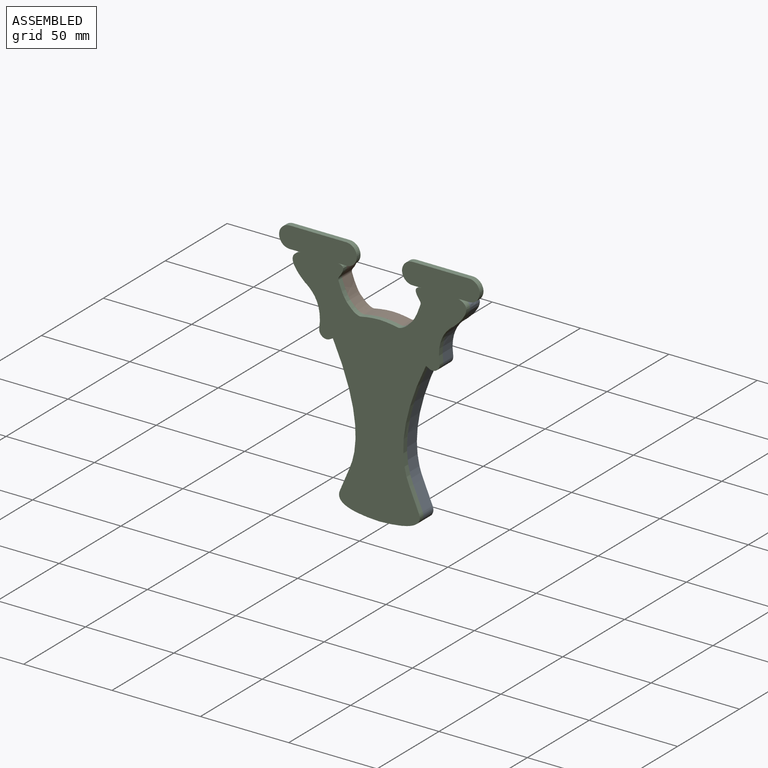
[diagram: assembled view]
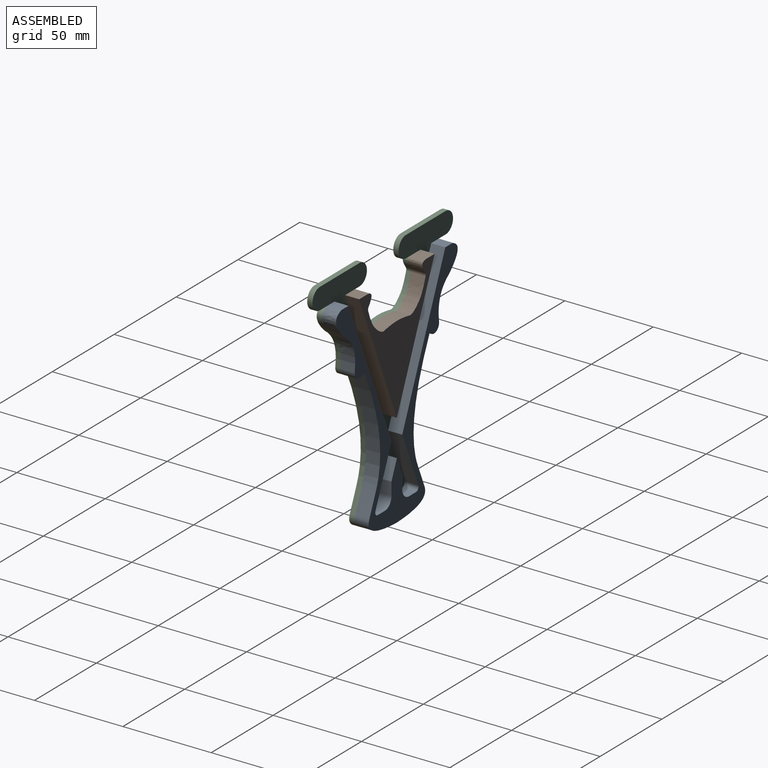
[diagram: assembled view, second angle]
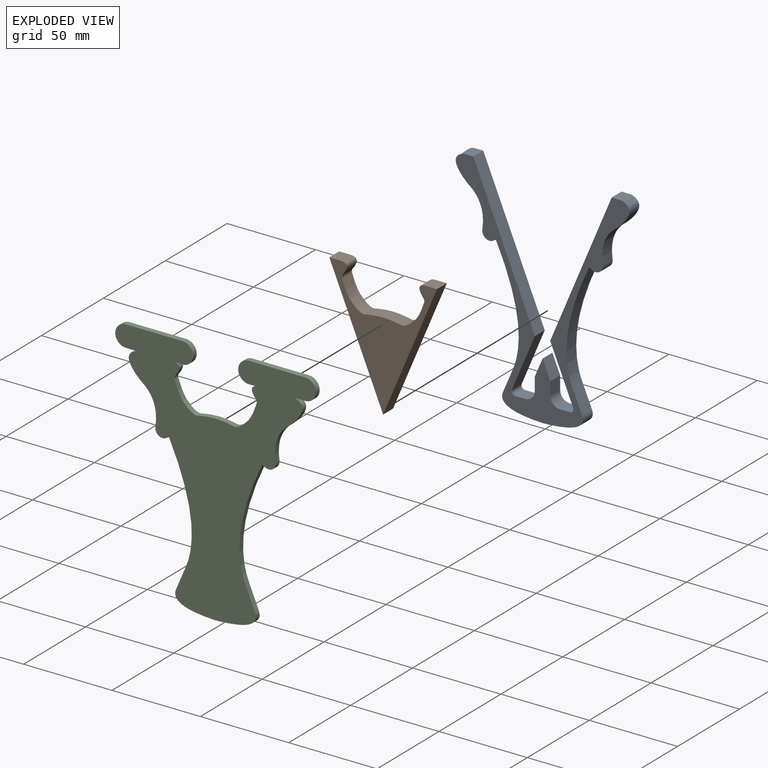
[diagram: exploded view]
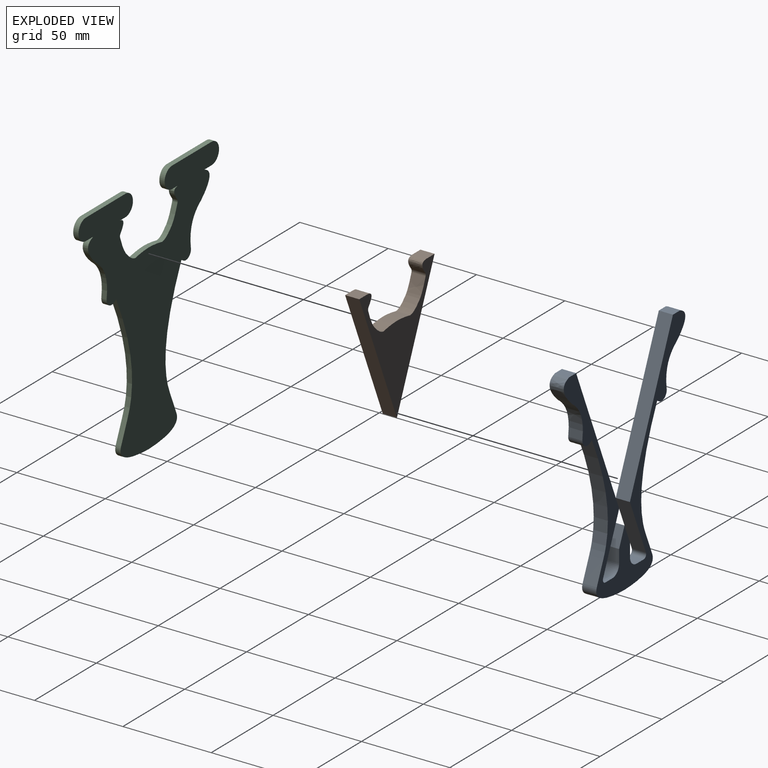
[diagram: exploded view, second angle]
ASSEMBLY  parts=3 mates=2
PART A: 34 faces, bbox 101.7x8x125.8 mm
  f0: plane 8x5.66mm, normal (0,0,1), area 45.3mm2, adj f1,f31,f32,f33
  f1: plane 82.55x34.79mm, normal (-0.92,0,0.39), area 716.6mm2, adj f0,f2,f32,f33
  f2: plane 30.79x12.97mm, normal (-0.92,0,-0.39), area 267.3mm2, adj f1,f3,f32,f33
  f3: cylinder r=2mm len=8mm, axis (0,1,0), area 31.5mm2, adj f2,f4,f32,f33
  f4: plane 8x5.67mm, normal (0,0,1), area 45.3mm2, adj f3,f5,f32,f33
  f5: cylinder r=5.43mm len=8mm, axis (0,1,0), area 68.2mm2, adj f4,f6,f32,f33
  f6: plane 8x7.45mm, normal (1,0,0), area 59.6mm2, adj f5,f7,f32,f33
  f7: plane 10.39x8mm, normal (0.92,0,0.39), area 90.2mm2, adj f6,f8,f32,f33
  f8: plane 10.39x8mm, normal (-0.92,0,0.39), area 90.2mm2, adj f7,f9,f32,f33
  f9: plane 8x7.45mm, normal (-1,0,0), area 59.6mm2, adj f8,f10,f32,f33
  f10: cylinder r=5.43mm len=8mm, axis (0,1,0), area 68.2mm2, adj f9,f11,f32,f33
  f11: plane 8x5.67mm, normal (0,0,1), area 45.3mm2, adj f10,f12,f32,f33
  f12: cylinder r=2mm len=8mm, axis (0,1,0), area 31.5mm2, adj f11,f13,f32,f33
  f13: plane 30.79x12.97mm, normal (0.92,0,-0.39), area 267.3mm2, adj f12,f14,f32,f33
  f14: plane 82.55x34.79mm, normal (0.92,0,0.39), area 716.6mm2, adj f13,f15,f32,f33
  f15: plane 8x5.66mm, normal (0,0,1), area 45.3mm2, adj f14,f16,f32,f33
  f16: extruded ~12.22x8mm, area 126mm2, adj f15,f17,f32,f33
  f17: plane 8x2.64mm, normal (-0.69,0,-0.72), area 29.3mm2, adj f16,f18,f32,f33
  f18: extruded ~21.75x8.47mm, area 197mm2, adj f17,f19,f32,f33
  f19: cylinder r=4.06mm len=8mm, axis (0,1,0), area 64.5mm2, adj f18,f20,f32,f33
  f20: plane 8x2.07mm, normal (0.48,0,-0.88), area 18.8mm2, adj f19,f21,f32,f33
  f21: extruded ~64.32x12.87mm, area 535.6mm2, adj f20,f22,f32,f33
  f22: extruded ~12.51x8mm, area 108.8mm2, adj f21,f23,f32,f33
  f23: extruded ~22.84x9.81mm, area 223.3mm2, adj f22,f24,f32,f33
  f24: extruded ~22.84x9.81mm, area 223.3mm2, adj f23,f25,f32,f33
  f25: extruded ~12.51x8mm, area 108.8mm2, adj f24,f26,f32,f33
  f26: extruded ~64.32x12.87mm, area 535.6mm2, adj f25,f27,f32,f33
  f27: plane 8x2.07mm, normal (-0.48,0,-0.88), area 18.8mm2, adj f26,f28,f32,f33
  f28: cylinder r=4.06mm len=8mm, axis (0,1,0), area 64.5mm2, adj f27,f29,f32,f33
  f29: extruded ~21.75x8.47mm, area 197mm2, adj f28,f30,f32,f33
  f30: extruded ~8x2.64mm, area 29.4mm2, adj f29,f31,f32,f33
  f31: extruded ~12.22x8mm, area 126mm2, adj f0,f30,f32,f33
  f32: plane 125.8x101.7mm, normal (0,-1,0), area 2021.7mm2, adj f0,f1,f2,f3,f4,f5,f6,f7
  f33: plane 125.8x101.7mm, normal (0,1,0), area 2021.7mm2, adj f0,f1,f2,f3,f4,f5,f6,f7
PART B: 16 faces, bbox 60.9x8x72.2 mm
  f0: plane 8x6.67mm, normal (0,0,1), area 53.3mm2, adj f1,f13,f14,f15
  f1: extruded ~8x6.88mm, area 77.8mm2, adj f0,f2,f14,f15
  f2: cylinder r=2mm len=8mm, axis (0,1,0), area 15.5mm2, adj f1,f3,f14,f15
  f3: extruded ~9.79x8mm, area 87mm2, adj f2,f4,f14,f15
  f4: extruded ~8x7.93mm, area 78.7mm2, adj f3,f5,f14,f15
  f5: cylinder r=55.69mm len=10.68mm, axis (0,1,0), area 86.1mm2, adj f4,f6,f14,f15
  f6: cylinder r=55.69mm len=10.68mm, axis (0,1,0), area 86.1mm2, adj f5,f7,f14,f15
  f7: extruded ~8x7.93mm, area 78.7mm2, adj f6,f8,f14,f15
  f8: extruded ~9.79x8mm, area 87mm2, adj f7,f9,f14,f15
  f9: cylinder r=2mm len=8mm, axis (0,1,0), area 15.5mm2, adj f8,f10,f14,f15
  f10: extruded ~8x6.88mm, area 77.8mm2, adj f9,f11,f14,f15
  f11: plane 8x6.67mm, normal (0,0,1), area 53.3mm2, adj f10,f12,f14,f15
  f12: plane 72.25x30.44mm, normal (-0.92,0,-0.39), area 627.2mm2, adj f11,f13,f14,f15
  f13: plane 72.25x30.44mm, normal (0.92,0,-0.39), area 627.2mm2, adj f0,f12,f14,f15
  f14: plane 72.25x60.89mm, normal (0,-1,0), area 1252.9mm2, adj f0,f1,f2,f3,f4,f5,f6,f7
  f15: plane 72.25x60.89mm, normal (0,1,0), area 1252.9mm2, adj f0,f1,f2,f3,f4,f5,f6,f7
PART C: 38 faces, bbox 113.6x3x137.8 mm
  f0: cylinder r=6mm len=12mm, axis (0,1,0), area 56.5mm2, adj f1,f35,f36,f37
  f1: plane 6x3mm, normal (0,0,-1), area 18mm2, adj f0,f2,f36,f37
  f2: extruded ~12.22x4.33mm, area 47.2mm2, adj f1,f3,f36,f37
  f3: plane 3x2.64mm, normal (-0.69,0,-0.72), area 11mm2, adj f2,f4,f36,f37
  f4: extruded ~21.75x8.47mm, area 73.9mm2, adj f3,f5,f36,f37
  f5: cylinder r=4.06mm len=5.67mm, axis (0,1,0), area 24.2mm2, adj f4,f6,f36,f37
  f6: plane 3x2.07mm, normal (0.48,0,-0.88), area 7mm2, adj f5,f7,f36,f37
  f7: extruded ~64.32x12.87mm, area 200.8mm2, adj f6,f8,f36,f37
  f8: extruded ~12.51x5.34mm, area 40.8mm2, adj f7,f9,f36,f37
  f9: extruded ~22.84x9.81mm, area 83.8mm2, adj f8,f10,f36,f37
  f10: extruded ~22.84x9.81mm, area 83.8mm2, adj f9,f11,f36,f37
  f11: extruded ~12.51x5.34mm, area 40.8mm2, adj f10,f12,f36,f37
  f12: extruded ~64.32x12.87mm, area 200.8mm2, adj f11,f13,f36,f37
  f13: plane 3x2.07mm, normal (-0.48,0,-0.88), area 7mm2, adj f12,f14,f36,f37
  f14: cylinder r=4.06mm len=5.67mm, axis (0,1,0), area 24.2mm2, adj f13,f15,f36,f37
  f15: extruded ~21.75x8.47mm, area 73.9mm2, adj f14,f16,f36,f37
  f16: extruded ~3x2.64mm, area 11mm2, adj f15,f17,f36,f37
  f17: extruded ~12.22x4.33mm, area 47.2mm2, adj f16,f18,f36,f37
  f18: plane 6x3mm, normal (0,0,-1), area 18mm2, adj f17,f19,f36,f37
  f19: cylinder r=6mm len=12mm, axis (0,1,0), area 56.5mm2, adj f18,f20,f36,f37
  f20: plane 32x3mm, normal (0,0,1), area 96mm2, adj f19,f21,f36,f37
  f21: cylinder r=6mm len=12mm, axis (0,1,0), area 56.5mm2, adj f20,f22,f36,f37
  f22: plane 4.99x3mm, normal (0,0,-1), area 15mm2, adj f21,f23,f36,f37
  f23: extruded ~6.88x3.24mm, area 29.2mm2, adj f22,f24,f36,f37
  f24: cylinder r=2mm len=3mm, axis (0,1,0), area 5.8mm2, adj f23,f25,f36,f37
  f25: extruded ~9.79x4.61mm, area 32.6mm2, adj f24,f26,f36,f37
  f26: extruded ~7.93x5.38mm, area 29.5mm2, adj f25,f27,f36,f37
  f27: cylinder r=55.69mm len=10.68mm, axis (0,1,0), area 32.3mm2, adj f26,f28,f36,f37
  f28: cylinder r=55.69mm len=10.68mm, axis (0,1,0), area 32.3mm2, adj f27,f29,f36,f37
  f29: extruded ~7.93x5.38mm, area 29.5mm2, adj f28,f30,f36,f37
  f30: extruded ~9.79x4.61mm, area 32.6mm2, adj f29,f31,f36,f37
  f31: cylinder r=2mm len=3mm, axis (0,1,0), area 5.8mm2, adj f30,f32,f36,f37
  f32: extruded ~6.88x3.24mm, area 29.2mm2, adj f31,f33,f36,f37
  f33: plane 4.99x3mm, normal (0,0,-1), area 15mm2, adj f32,f34,f36,f37
  f34: cylinder r=6mm len=12mm, axis (0,1,0), area 56.5mm2, adj f33,f35,f36,f37
  f35: plane 32x3mm, normal (0,0,1), area 96mm2, adj f0,f34,f36,f37
  f36: plane 137.8x113.57mm, normal (0,-1,0), area 6248.5mm2, adj f0,f1,f2,f3,f4,f5,f6,f7
  f37: plane 137.8x113.57mm, normal (0,1,0), area 6248.5mm2, adj f0,f1,f2,f3,f4,f5,f6,f7
PLACE A t=(7.01,-20.93,13.51)mm
PLACE B t=(7.01,-20.93,13.51)mm
PLACE C t=(7.01,-28.93,13.51)mm
MATE fastened A.f32 <-> C.f37  axis (0,-1,0) through (43.41,-28.93,40.53)mm
MATE fastened C.f37 <-> B.f14  axis (0,1,0) through (9.3,-28.93,16.65)mm
